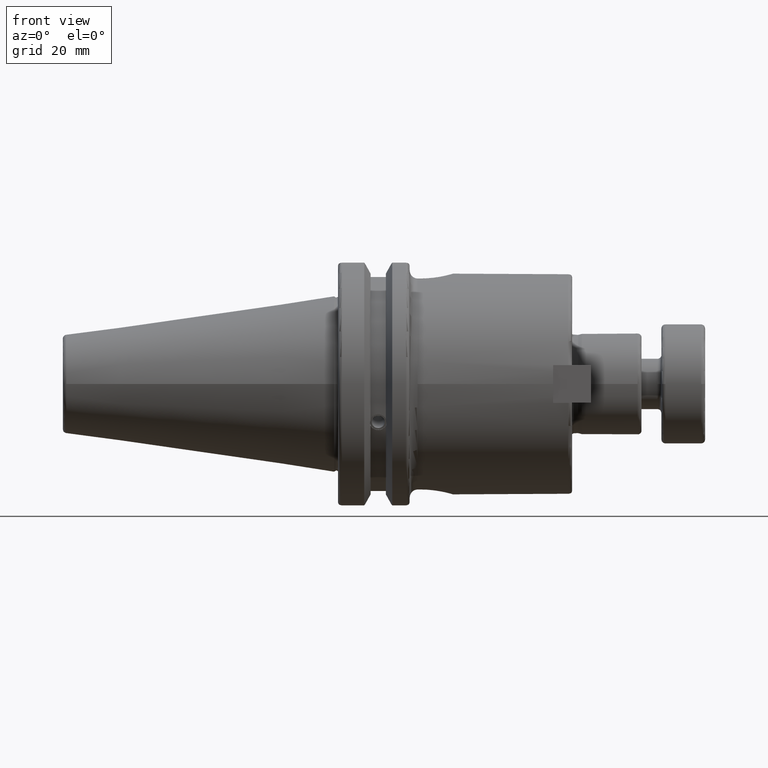
[diagram: clean part render]
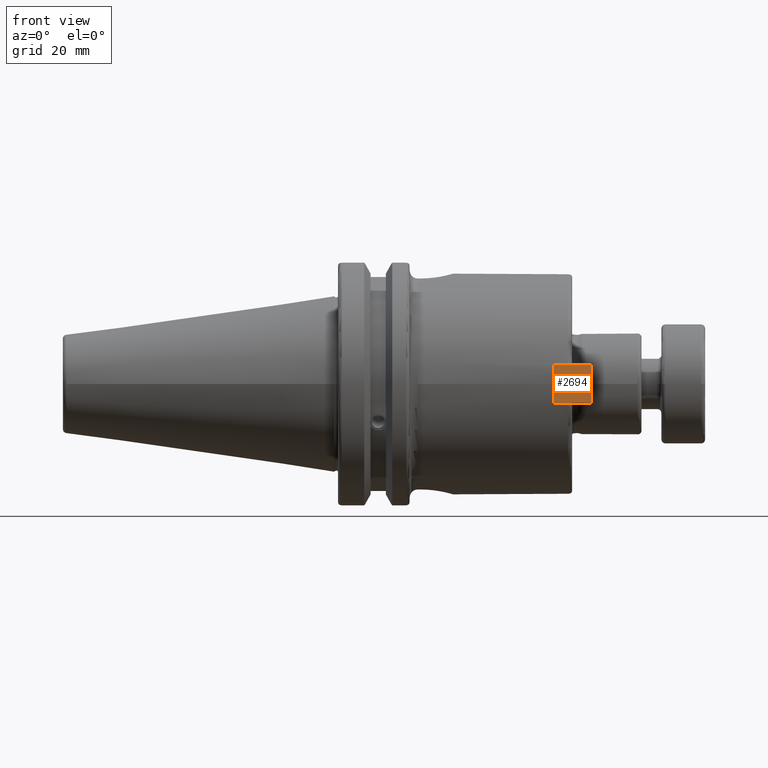
[diagram: same view with one face highlighted and labeled with its STEP entity id]
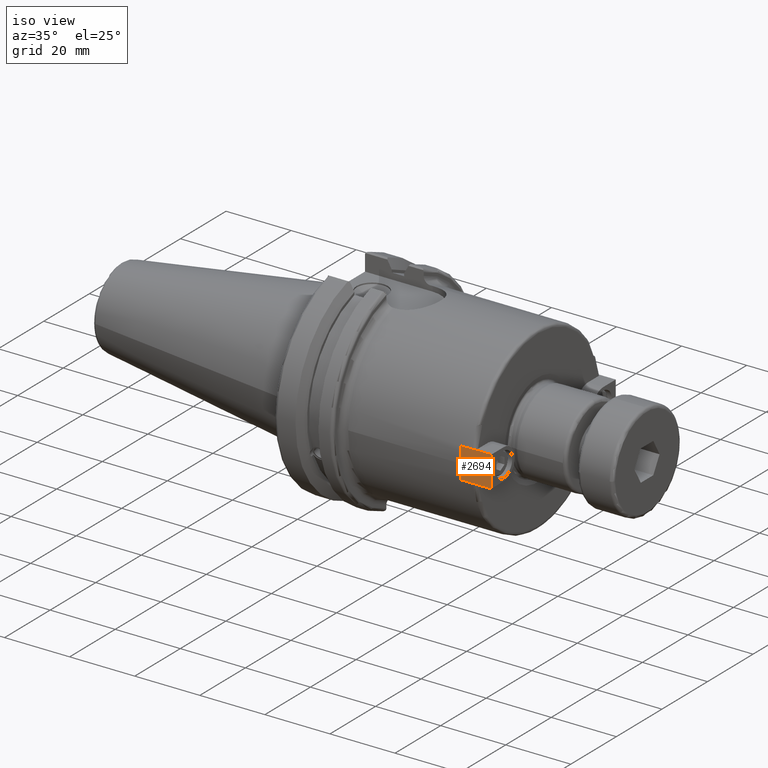
[diagram: same view with one face highlighted and labeled with its STEP entity id]
A machine part, front view. The second image highlights one B-rep face of the part: STEP entity #2694.
A second angle (iso view) of the same face is appended — the face is thin or edge-on in the first view.
In plain terms, the highlighted planar face has unit normal (0, -1, -0).
Its self-contained STEP definition (entity closure, byte-faithful):
#204=PLANE('',#3077);
#344=FACE_OUTER_BOUND('',#518,.T.);
#518=EDGE_LOOP('',(#2342,#2343,#2344,#2345));
#826=LINE('',#5053,#994);
#827=LINE('',#5056,#995);
#828=LINE('',#5058,#996);
#829=LINE('',#5059,#997);
#994=VECTOR('',#3759,10.);
#995=VECTOR('',#3762,10.);
#996=VECTOR('',#3763,10.);
#997=VECTOR('',#3764,10.);
#1285=VERTEX_POINT('',#5046);
#1288=VERTEX_POINT('',#5051);
#1289=VERTEX_POINT('',#5055);
#1290=VERTEX_POINT('',#5057);
#1650=EDGE_CURVE('',#1285,#1288,#826,.T.);
#1651=EDGE_CURVE('',#1289,#1285,#827,.T.);
#1652=EDGE_CURVE('',#1290,#1288,#828,.T.);
#1653=EDGE_CURVE('',#1289,#1290,#829,.T.);
#2342=ORIENTED_EDGE('',*,*,#1651,.T.);
#2343=ORIENTED_EDGE('',*,*,#1650,.T.);
#2344=ORIENTED_EDGE('',*,*,#1652,.F.);
#2345=ORIENTED_EDGE('',*,*,#1653,.F.);
#2694=ADVANCED_FACE('',(#344),#204,.T.);
#3077=AXIS2_PLACEMENT_3D('',#5054,#3760,#3761);
#3759=DIRECTION('',(0.,1.,0.));
#3760=DIRECTION('center_axis',(-2.33240131223772E-16,0.,-1.));
#3761=DIRECTION('ref_axis',(-1.,0.,2.33240131223772E-16));
#3762=DIRECTION('',(-1.,0.,2.33240131223772E-16));
#3763=DIRECTION('',(-1.,0.,2.33240131223772E-16));
#3764=DIRECTION('',(0.,1.,0.));
#5046=CARTESIAN_POINT('',(-4.76,0.,-5.44));
#5051=CARTESIAN_POINT('',(-4.76,9.52,-5.44));
#5053=CARTESIAN_POINT('',(-4.76,0.,-5.44));
#5054=CARTESIAN_POINT('Origin',(4.76,0.,-5.44));
#5055=CARTESIAN_POINT('',(4.76,0.,-5.44));
#5056=CARTESIAN_POINT('',(4.76,0.,-5.44));
#5057=CARTESIAN_POINT('',(4.76,9.52,-5.44));
#5058=CARTESIAN_POINT('',(4.76,9.52,-5.44));
#5059=CARTESIAN_POINT('',(4.76,0.,-5.44));